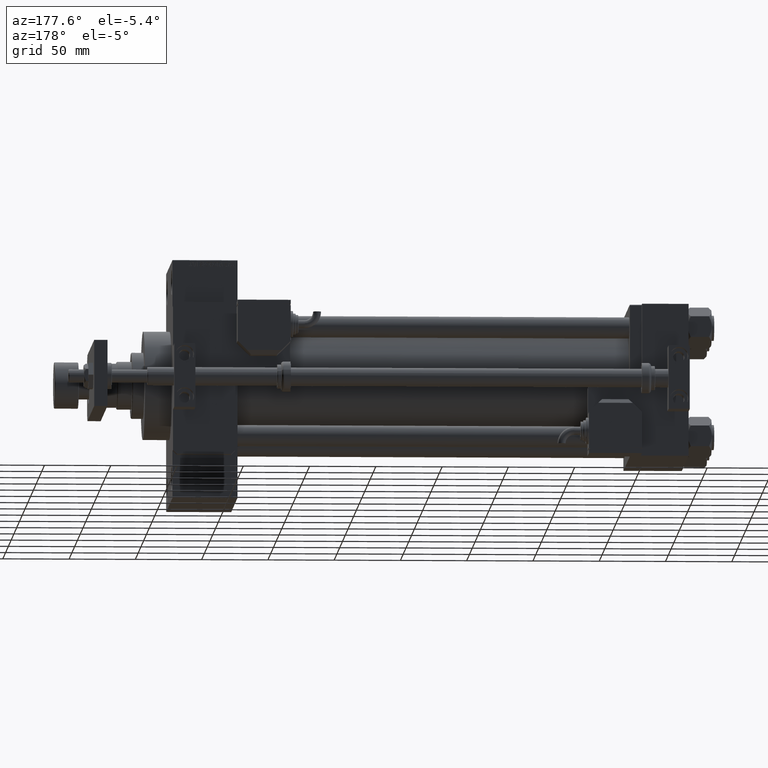
[diagram: clean part render]
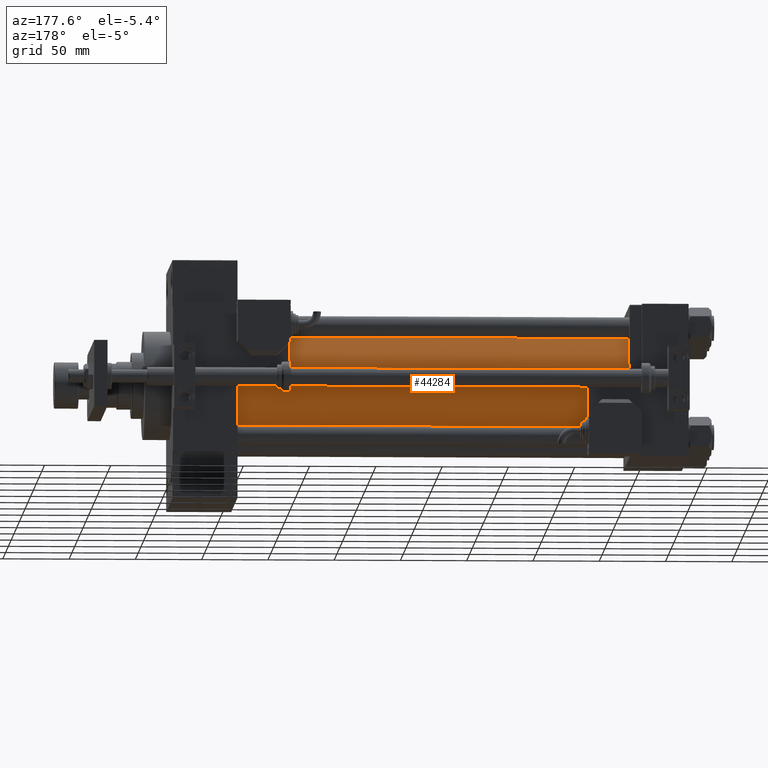
[diagram: same view with one face highlighted and labeled with its STEP entity id]
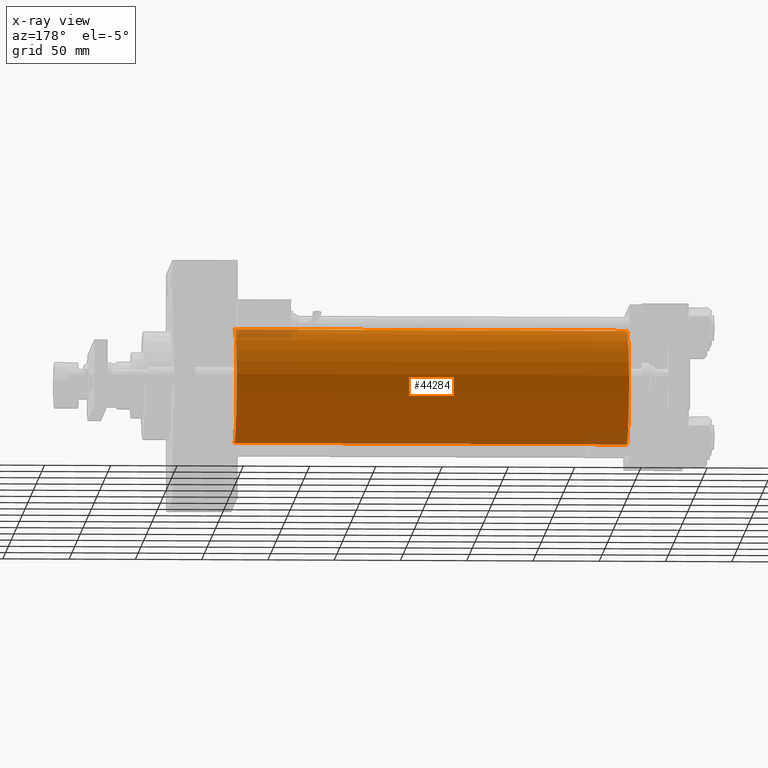
[diagram: x-ray of the same camera — body ghosted, the highlighted face saturated]
A machine part, auxiliary view. The second image highlights one B-rep face of the part: STEP entity #44284.
The next image is the same camera in x-ray: the body ghosted, the highlighted face saturated — about 3% of this face is hidden behind the body in this view.
In plain terms, the highlighted cylindrical surface (partial cylindrical patch) has radius 43 mm, axis along (-1, -0, -0).
Its self-contained STEP definition (entity closure, byte-faithful):
#128 = VERTEX_POINT ( 'NONE', #8140 ) ;
#2119 = AXIS2_PLACEMENT_3D ( 'NONE', #3411, #41525, #49693 ) ;
#3411 = CARTESIAN_POINT ( 'NONE',  ( 339.9999999999999432, -2.602085213965210642E-15, 0.000000000000000000 ) ) ;
#5093 = VERTEX_POINT ( 'NONE', #46847 ) ;
#5398 = DIRECTION ( 'NONE',  ( 0.000000000000000000, 0.000000000000000000, 1.000000000000000000 ) ) ;
#7583 = ORIENTED_EDGE ( 'NONE', *, *, #47498, .F. ) ;
#8140 = CARTESIAN_POINT ( 'NONE',  ( 43.99999999999998579, 2.663896022368408223E-15, -43.00000000000000000 ) ) ;
#9782 = LINE ( 'NONE', #34556, #38488 ) ;
#9990 = DIRECTION ( 'NONE',  ( 0.000000000000000000, 0.000000000000000000, 1.000000000000000000 ) ) ;
#12724 = EDGE_LOOP ( 'NONE', ( #7583, #39506, #29686, #24480 ) ) ;
#13600 = DIRECTION ( 'NONE',  ( -1.000000000000000000, -0.000000000000000000, -0.000000000000000000 ) ) ;
#14104 = CARTESIAN_POINT ( 'NONE',  ( 43.99999999999998579, -2.602085213965210642E-15, 0.000000000000000000 ) ) ;
#18425 = EDGE_CURVE ( 'NONE', #5093, #128, #41541, .T. ) ;
#18440 = VERTEX_POINT ( 'NONE', #45085 ) ;
#19635 = CARTESIAN_POINT ( 'NONE',  ( 43.99999999999998579, -2.602085213965210642E-15, 43.00000000000000000 ) ) ;
#19847 = VERTEX_POINT ( 'NONE', #19635 ) ;
#20880 = CARTESIAN_POINT ( 'NONE',  ( 339.9999999999999432, 2.663896022368408223E-15, -43.00000000000000000 ) ) ;
#21768 = DIRECTION ( 'NONE',  ( 1.000000000000000000, -0.000000000000000000, 0.000000000000000000 ) ) ;
#22299 = CIRCLE ( 'NONE', #47441, 43.00000000000000000 ) ;
#24480 = ORIENTED_EDGE ( 'NONE', *, *, #42472, .F. ) ;
#28495 = DIRECTION ( 'NONE',  ( -1.000000000000000000, -0.000000000000000000, -0.000000000000000000 ) ) ;
#29686 = ORIENTED_EDGE ( 'NONE', *, *, #50553, .T. ) ;
#29690 = VECTOR ( 'NONE', #28495, 1000.000000000000000 ) ;
#30672 = FACE_OUTER_BOUND ( 'NONE', #12724, .T. ) ;
#34556 = CARTESIAN_POINT ( 'NONE',  ( 339.9999999999999432, -2.602085213965210642E-15, 43.00000000000000000 ) ) ;
#38488 = VECTOR ( 'NONE', #13600, 1000.000000000000000 ) ;
#38682 = CIRCLE ( 'NONE', #2119, 43.00000000000000000 ) ;
#39506 = ORIENTED_EDGE ( 'NONE', *, *, #18425, .T. ) ;
#41525 = DIRECTION ( 'NONE',  ( 1.000000000000000000, 0.000000000000000000, 0.000000000000000000 ) ) ;
#41541 = LINE ( 'NONE', #20880, #29690 ) ;
#42472 = EDGE_CURVE ( 'NONE', #18440, #19847, #9782, .T. ) ;
#43183 = DIRECTION ( 'NONE',  ( -1.000000000000000000, -0.000000000000000000, -0.000000000000000000 ) ) ;
#44284 = ADVANCED_FACE ( 'NONE', ( #30672 ), #48056, .T. ) ;
#45085 = CARTESIAN_POINT ( 'NONE',  ( 339.9999999999999432, -2.602085213965210642E-15, 43.00000000000000000 ) ) ;
#46847 = CARTESIAN_POINT ( 'NONE',  ( 339.9999999999999432, 2.663896022368408223E-15, -43.00000000000000000 ) ) ;
#47266 = CARTESIAN_POINT ( 'NONE',  ( 339.9999999999999432, -2.602085213965210642E-15, 0.000000000000000000 ) ) ;
#47441 = AXIS2_PLACEMENT_3D ( 'NONE', #14104, #21768, #5398 ) ;
#47498 = EDGE_CURVE ( 'NONE', #5093, #18440, #38682, .T. ) ;
#48056 = CYLINDRICAL_SURFACE ( 'NONE', #50678, 43.00000000000000000 ) ;
#49693 = DIRECTION ( 'NONE',  ( 0.000000000000000000, 0.000000000000000000, -1.000000000000000000 ) ) ;
#50553 = EDGE_CURVE ( 'NONE', #128, #19847, #22299, .T. ) ;
#50678 = AXIS2_PLACEMENT_3D ( 'NONE', #47266, #43183, #9990 ) ;